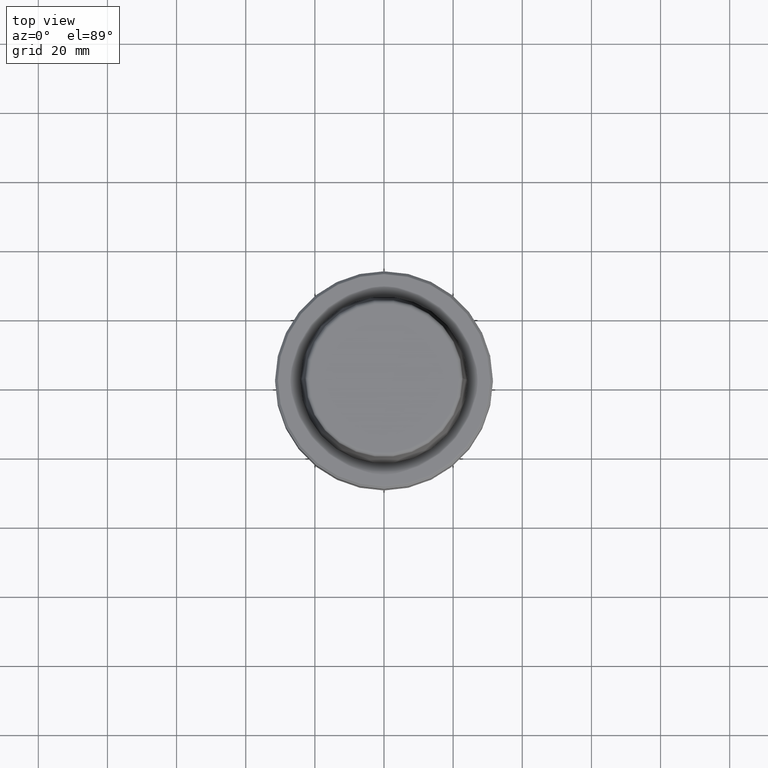
[diagram: clean part render]
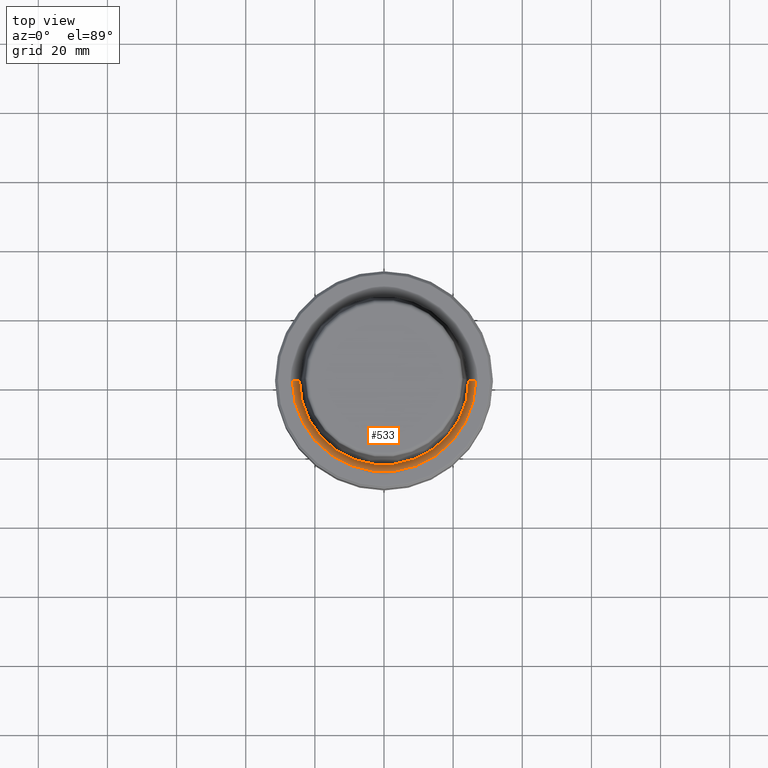
[diagram: same view with one face highlighted and labeled with its STEP entity id]
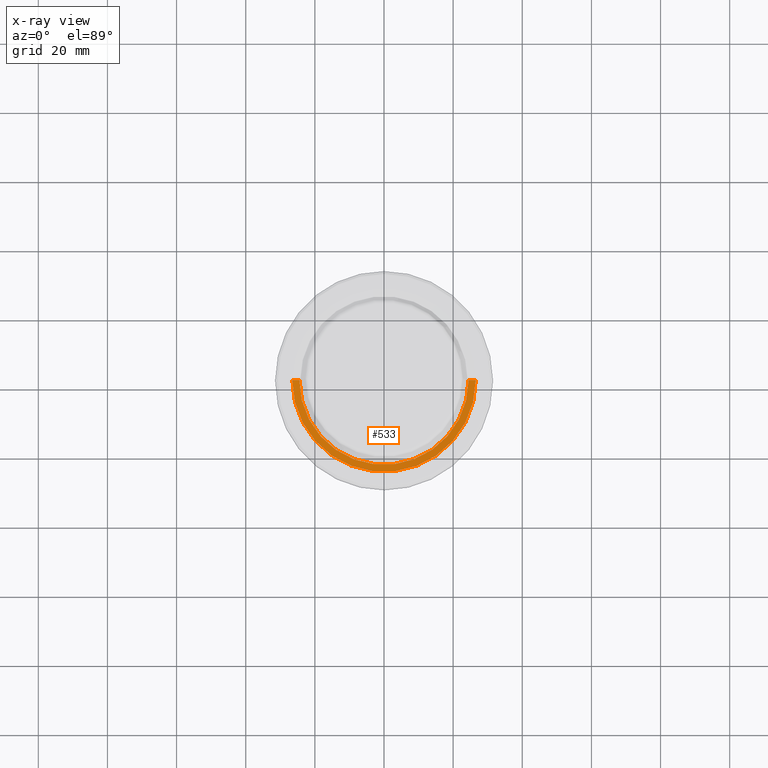
[diagram: x-ray of the same camera — body ghosted, the highlighted face saturated]
A machine part, top view. The second image highlights one B-rep face of the part: STEP entity #533.
The next image is the same camera in x-ray: the body ghosted, the highlighted face saturated — about 0% of this face is hidden behind the body in this view.
In plain terms, the highlighted conical surface has half-angle 80 deg.
Its self-contained STEP definition (entity closure, byte-faithful):
#19 = CARTESIAN_POINT ( 'NONE',  ( 26.52499999999999900, 0.0000000000000000000, 0.0000000000000000000 ) ) ;
#29 = VERTEX_POINT ( 'NONE', #19 ) ;
#45 = DIRECTION ( 'NONE',  ( 1.000000000000000000, 0.0000000000000000000, 0.0000000000000000000 ) ) ;
#104 = CARTESIAN_POINT ( 'NONE',  ( 0.0000000000000000000, 0.0000000000000000000, 0.0000000000000000000 ) ) ;
#116 = VERTEX_POINT ( 'NONE', #162 ) ;
#162 = CARTESIAN_POINT ( 'NONE',  ( -24.47682408883346700, 3.122961031053313900E-015, -0.3611486743758107700 ) ) ;
#164 = CIRCLE ( 'NONE', #424, 24.47682408883346700 ) ;
#230 = LINE ( 'NONE', #691, #500 ) ;
#241 = VECTOR ( 'NONE', #1161, 1000.000000000000200 ) ;
#284 = AXIS2_PLACEMENT_3D ( 'NONE', #1208, #643, #45 ) ;
#331 = EDGE_CURVE ( 'NONE', #116, #999, #164, .T. ) ;
#356 = ORIENTED_EDGE ( 'NONE', *, *, #727, .T. ) ;
#424 = AXIS2_PLACEMENT_3D ( 'NONE', #572, #1238, #676 ) ;
#500 = VECTOR ( 'NONE', #782, 1000.000000000000200 ) ;
#510 = ORIENTED_EDGE ( 'NONE', *, *, #331, .F. ) ;
#526 = EDGE_CURVE ( 'NONE', #116, #1236, #772, .T. ) ;
#533 = ADVANCED_FACE ( 'NONE', ( #1241 ), #1212, .F. ) ;
#572 = CARTESIAN_POINT ( 'NONE',  ( 0.0000000000000000000, 0.0000000000000000000, -0.3611486743758107700 ) ) ;
#631 = EDGE_LOOP ( 'NONE', ( #510, #1179, #356, #802 ) ) ;
#643 = DIRECTION ( 'NONE',  ( -0.0000000000000000000, -0.0000000000000000000, 1.000000000000000000 ) ) ;
#676 = DIRECTION ( 'NONE',  ( 1.000000000000000000, 0.0000000000000000000, 0.0000000000000000000 ) ) ;
#691 = CARTESIAN_POINT ( 'NONE',  ( 26.52499999999999900, 0.0000000000000000000, 0.0000000000000000000 ) ) ;
#721 = AXIS2_PLACEMENT_3D ( 'NONE', #104, #795, #1169 ) ;
#727 = EDGE_CURVE ( 'NONE', #1236, #29, #1100, .T. ) ;
#749 = CARTESIAN_POINT ( 'NONE',  ( 24.47682408883346700, 0.0000000000000000000, -0.3611486743758107700 ) ) ;
#772 = LINE ( 'NONE', #884, #241 ) ;
#782 = DIRECTION ( 'NONE',  ( 0.9848077530122074700, 0.0000000000000000000, 0.1736481776669334700 ) ) ;
#795 = DIRECTION ( 'NONE',  ( -0.0000000000000000000, -0.0000000000000000000, 1.000000000000000000 ) ) ;
#802 = ORIENTED_EDGE ( 'NONE', *, *, #1224, .F. ) ;
#884 = CARTESIAN_POINT ( 'NONE',  ( -26.52499999999999900, 3.248375634738354300E-015, 0.0000000000000000000 ) ) ;
#999 = VERTEX_POINT ( 'NONE', #749 ) ;
#1071 = CARTESIAN_POINT ( 'NONE',  ( -26.52499999999999900, 3.248375634738354300E-015, 0.0000000000000000000 ) ) ;
#1100 = CIRCLE ( 'NONE', #284, 26.52499999999999900 ) ;
#1161 = DIRECTION ( 'NONE',  ( -0.9848077530122074700, 1.206041662501897100E-016, 0.1736481776669334700 ) ) ;
#1169 = DIRECTION ( 'NONE',  ( 1.000000000000000000, 0.0000000000000000000, 0.0000000000000000000 ) ) ;
#1179 = ORIENTED_EDGE ( 'NONE', *, *, #526, .T. ) ;
#1208 = CARTESIAN_POINT ( 'NONE',  ( 0.0000000000000000000, 0.0000000000000000000, 0.0000000000000000000 ) ) ;
#1212 = CONICAL_SURFACE ( 'NONE', #721, 26.52499999999999900, 1.396263401595460500 ) ;
#1224 = EDGE_CURVE ( 'NONE', #999, #29, #230, .T. ) ;
#1236 = VERTEX_POINT ( 'NONE', #1071 ) ;
#1238 = DIRECTION ( 'NONE',  ( -0.0000000000000000000, -0.0000000000000000000, 1.000000000000000000 ) ) ;
#1241 = FACE_OUTER_BOUND ( 'NONE', #631, .T. ) ;